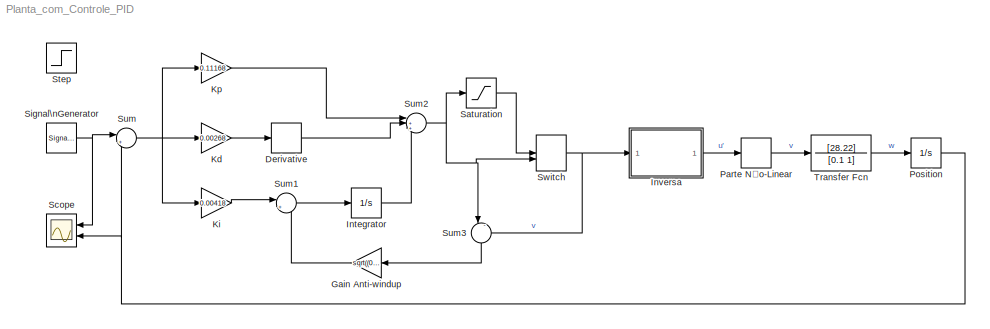
MODEL Planta_com_Controle_PID
KIND model
BLOCK [Derivative] Derivative
  SID = 4
BLOCK [Gain] Gain Anti-windup
  Gain = sqrt((0.00268)*(0.00418))
  OutDataTypeStr = Inherit: Inherit via internal rule
  ParamDataTypeStr = Inherit: Inherit via internal rule
  SID = 7
  SaturateOnIntegerOverflow = off
BLOCK [Integrator] Integrator
  Ports = [1, 1]
  SID = 8
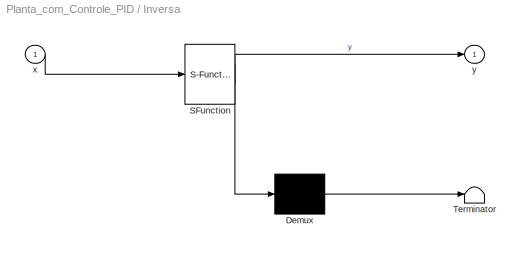
BLOCK [SubSystem] Inversa
  ErrorFcn = Stateflow.Translate.translate
  PermitHierarchicalResolution = ExplicitOnly
  Ports = [1, 1]
  RequestExecContextInheritance = off
  SFBlockType = MATLAB Function
  SID = 9
  TreatAsAtomicUnit = on
  Variant = off
BLOCK [Demux] Inversa/ Demux 
  Outputs = 1
  Ports = [1, 1]
  SID = 9::17
BLOCK [S-Function] Inversa/ SFunction 
  EnableBusSupport = on
  FunctionName = sf_sfun
  PortCounts = [1 2]
  Ports = [1, 2]
  SFunctionDeploymentMode = off
  SID = 9::16
  Tag = Stateflow S-Function Planta_com_Controle_PID 2
BLOCK [Terminator] Inversa/ Terminator 
  SID = 9::18
BLOCK [Inport] Inversa/x
  IconDisplay = Port number
  SID = 9::1
BLOCK [Outport] Inversa/y
  IconDisplay = Port number
  SID = 9::5
BLOCK [Gain] Kd
  Gain = 0.00268
  OutDataTypeStr = Inherit: Inherit via internal rule
  ParamDataTypeStr = Inherit: Inherit via internal rule
  SID = 10
  SaturateOnIntegerOverflow = off
BLOCK [Gain] Ki
  Gain = 0.00418
  OutDataTypeStr = Inherit: Inherit via internal rule
  ParamDataTypeStr = Inherit: Inherit via internal rule
  SID = 11
  SaturateOnIntegerOverflow = off
BLOCK [Gain] Kp
  Gain = 0.11168
  OutDataTypeStr = Inherit: Inherit via internal rule
  ParamDataTypeStr = Inherit: Inherit via internal rule
  SID = 12
  SaturateOnIntegerOverflow = off
BLOCK [DeadZone] Parte Não-Linear
  LowerValue = -0.5296
  SID = 13
  UpperValue = 0.5635
BLOCK [Integrator] Position
  Ports = [1, 1]
  SID = 14
BLOCK [Saturate] Saturation
  InputPortMap = u0
  LowerLimit = -10
  Ports = [1, 1]
  SID = 15
  UpperLimit = 10
BLOCK [Scope] Scope
  NumInputPorts = 2
  Ports = [2]
  SID = 16
  ScopeSpecificationString = Simulink.scopes.TimeScopeBlockCfg('CurrentConfiguration', extmgr.ConfigurationSet(extmgr.Configuration('Core','General UI',true),extmgr.Configuration('Core','Source UI',true),extmgr.Configuration('Sources','WiredSimulink',true),extmgr.Configuration('Visuals','Time Domain',true,'SerializedDisplays',{struct('MinYLimReal','-50.08508','MaxYLimReal','-27.54744','YLabelReal','','MinYLimMag','0.00000','M...<+1426ch>
BLOCK [SignalGenerator] Signal\nGenerator
  Amplitude = 45
  Frequency = 0.05
  Ports = [0, 1]
  SID = 24
  WaveForm = square
BLOCK [Step] Step
  After = 45
  SID = 17
  SampleTime = 0
BLOCK [Sum] Sum
  IconShape = round
  InputSameDT = off
  Inputs = |+-
  OutDataTypeStr = Inherit: Inherit via internal rule
  Ports = [2, 1]
  SID = 18
  SaturateOnIntegerOverflow = off
BLOCK [Sum] Sum1
  IconShape = round
  InputSameDT = off
  Inputs = |++
  OutDataTypeStr = Inherit: Inherit via internal rule
  Ports = [2, 1]
  SID = 19
  SaturateOnIntegerOverflow = off
BLOCK [Sum] Sum2
  IconShape = round
  InputSameDT = off
  Inputs = |+++
  OutDataTypeStr = Inherit: Inherit via internal rule
  Ports = [3, 1]
  SID = 20
  SaturateOnIntegerOverflow = off
BLOCK [Sum] Sum3
  IconShape = round
  InputSameDT = off
  Inputs = |-+
  OutDataTypeStr = Inherit: Inherit via internal rule
  Ports = [2, 1]
  SID = 21
  SaturateOnIntegerOverflow = off
BLOCK [ManualSwitch] Switch
  SID = 22
BLOCK [TransferFcn] Transfer Fcn
  Denominator = [0.1 1]
  Numerator = [28.22]
  SID = 23
LINE Derivative:1 -> Sum2:2
LINE Gain Anti-windup:1 -> Sum1:2
LINE Integrator:1 -> Sum2:3
LINE Inversa/ Demux :1 -> Inversa/ Terminator :1
LINE Inversa/ SFunction :1 -> Inversa/ Demux :1
LINE Inversa/ SFunction :2 -> Inversa/y:1
LINE Inversa/x:1 -> Inversa/ SFunction :1
LINE Inversa:1 -> Parte Não-Linear:1
LINE Kd:1 -> Derivative:1
LINE Ki:1 -> Sum1:1
LINE Kp:1 -> Sum2:1
LINE Parte Não-Linear:1 -> Transfer Fcn:1
NET Position:1 -> Scope:2, Sum:2
LINE Saturation:1 -> Switch:1
NET Signal\nGenerator:1 -> Scope:1, Sum:1
LINE Sum1:1 -> Integrator:1
NET Sum2:1 -> Saturation:1, Sum3:1, Switch:2
LINE Sum3:1 -> Gain Anti-windup:1
NET Sum:1 -> Kd:1, Ki:1, Kp:1
NET Switch:1 -> Inversa:1, Sum3:2
LINE Transfer Fcn:1 -> Position:1
note: NET lines group one-source signal fan-out (src -> all destinations, sorted); 1:1 wires keep LINE
CHART Inversa states=1 transitions=1
  STATE_LABEL 'eML_blk_kernel()'
